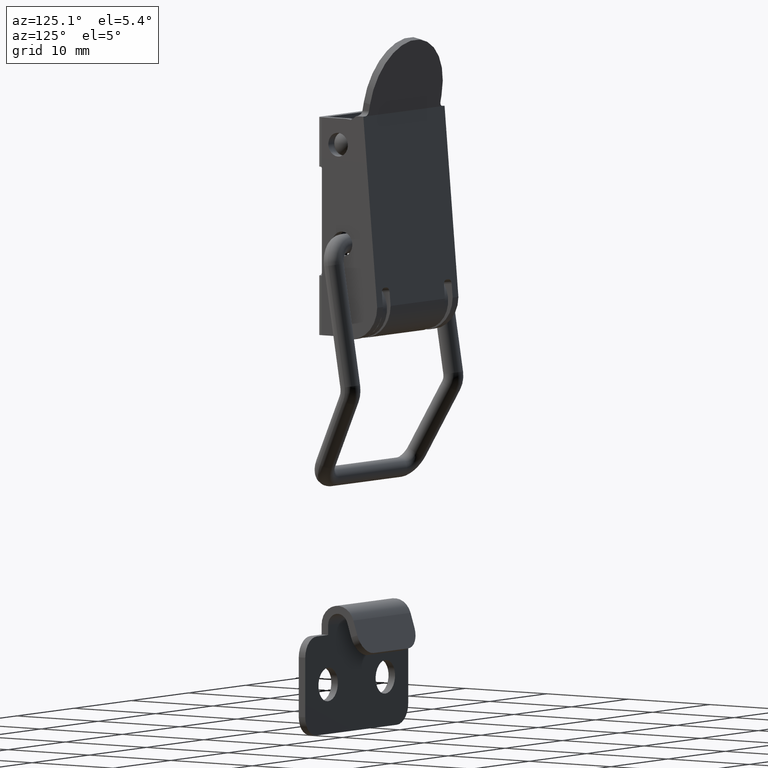
[diagram: clean part render]
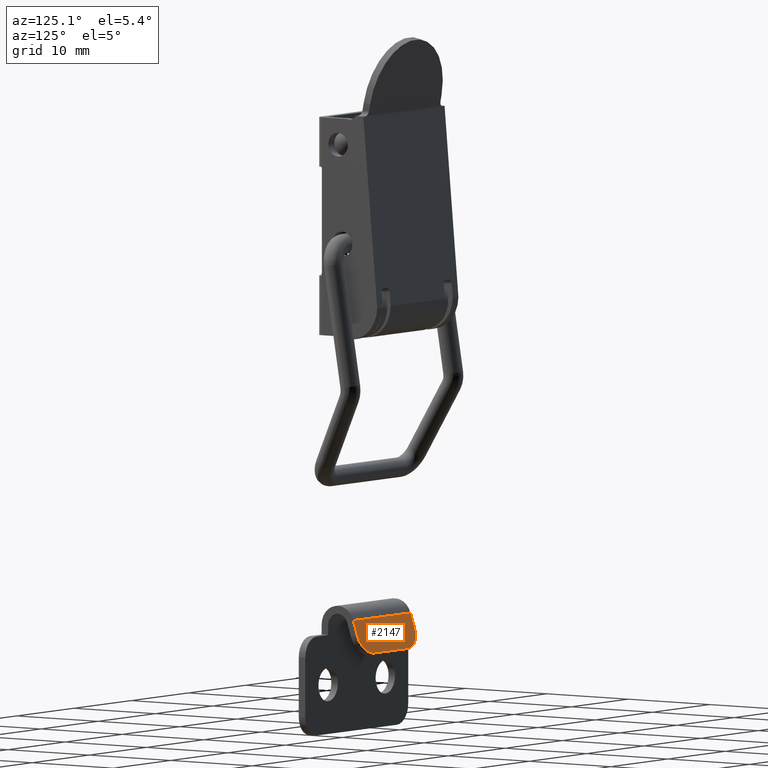
[diagram: same view with one face highlighted and labeled with its STEP entity id]
A machine part, auxiliary view. The second image highlights one B-rep face of the part: STEP entity #2147.
In plain terms, the highlighted planar face has unit normal (0, 0.9508, 0.3099).
Its self-contained STEP definition (entity closure, byte-faithful):
#43=ELLIPSE('',#2380,2.0000072193714,2.);
#44=ELLIPSE('',#2385,2.0000072193714,2.);
#116=PLANE('',#2384);
#257=LINE('',#3639,#423);
#262=LINE('',#3653,#428);
#263=LINE('',#3657,#429);
#264=LINE('',#3658,#430);
#423=VECTOR('',#2974,1.54435450031806);
#428=VECTOR('',#2985,6.);
#429=VECTOR('',#2988,1.54435450031806);
#430=VECTOR('',#2989,10.);
#617=FACE_OUTER_BOUND('',#787,.T.);
#787=EDGE_LOOP('',(#1887,#1888,#1889,#1890,#1891,#1892));
#1089=VERTEX_POINT('',#3632);
#1090=VERTEX_POINT('',#3634);
#1091=VERTEX_POINT('',#3638);
#1097=VERTEX_POINT('',#3652);
#1098=VERTEX_POINT('',#3654);
#1099=VERTEX_POINT('',#3656);
#1359=EDGE_CURVE('',#1089,#1090,#43,.T.);
#1361=EDGE_CURVE('',#1091,#1090,#257,.T.);
#1368=EDGE_CURVE('',#1089,#1097,#262,.T.);
#1369=EDGE_CURVE('',#1098,#1097,#44,.T.);
#1370=EDGE_CURVE('',#1098,#1099,#263,.T.);
#1371=EDGE_CURVE('',#1091,#1099,#264,.T.);
#1887=ORIENTED_EDGE('',*,*,#1359,.F.);
#1888=ORIENTED_EDGE('',*,*,#1368,.T.);
#1889=ORIENTED_EDGE('',*,*,#1369,.F.);
#1890=ORIENTED_EDGE('',*,*,#1370,.T.);
#1891=ORIENTED_EDGE('',*,*,#1371,.F.);
#1892=ORIENTED_EDGE('',*,*,#1361,.T.);
#2147=ADVANCED_FACE('',(#617),#116,.T.);
#2380=AXIS2_PLACEMENT_3D('',#3635,#2969,#2970);
#2384=AXIS2_PLACEMENT_3D('',#3651,#2983,#2984);
#2385=AXIS2_PLACEMENT_3D('',#3655,#2986,#2987);
#2969=DIRECTION('center_axis',(-0.309922122811675,-0.950761945910702,0.));
#2970=DIRECTION('ref_axis',(-0.950761945910702,0.309922122811675,2.4028470186737E-11));
#2974=DIRECTION('',(-0.950761945910702,0.309922122811675,1.31944725410935E-16));
#2983=DIRECTION('center_axis',(0.309922122811675,0.950761945910702,0.));
#2984=DIRECTION('ref_axis',(-0.950761945910702,0.309922122811675,0.));
#2985=DIRECTION('',(0.,0.,1.));
#2986=DIRECTION('center_axis',(-0.309922122811675,-0.950761945910702,0.));
#2987=DIRECTION('ref_axis',(-0.950761945910702,0.309922122811675,-1.20152065350085E-11));
#2988=DIRECTION('',(0.950761945910702,-0.309922122811675,0.));
#2989=DIRECTION('',(0.,0.,1.));
#3632=CARTESIAN_POINT('',(-2.75,5.,6.));
#3634=CARTESIAN_POINT('',(-0.848469244274995,4.38015351693374,4.));
#3635=CARTESIAN_POINT('Origin',(-0.848469244274995,4.38015351693374,6.));
#3638=CARTESIAN_POINT('',(0.61984424562335,3.9015238918214,4.));
#3639=CARTESIAN_POINT('',(0.34466740306652,3.99122393877915,4.));
#3651=CARTESIAN_POINT('Origin',(0.61984424562335,3.9015238918214,0.));
#3652=CARTESIAN_POINT('',(-2.75,5.,12.));
#3653=CARTESIAN_POINT('',(-2.75,5.,0.));
#3654=CARTESIAN_POINT('',(-0.848469244274995,4.38015351693374,14.));
#3655=CARTESIAN_POINT('Origin',(-0.848469244274996,4.38015351693374,12.));
#3656=CARTESIAN_POINT('',(0.61984424562335,3.9015238918214,14.));
#3657=CARTESIAN_POINT('',(0.344667403066521,3.99122393877915,14.));
#3658=CARTESIAN_POINT('',(0.61984424562335,3.9015238918214,0.));